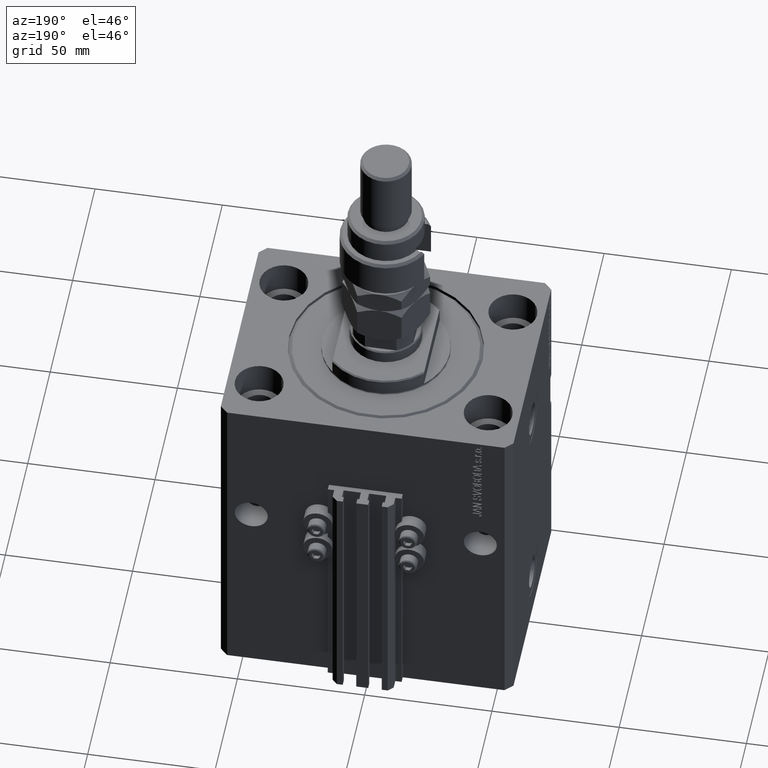
[diagram: clean part render]
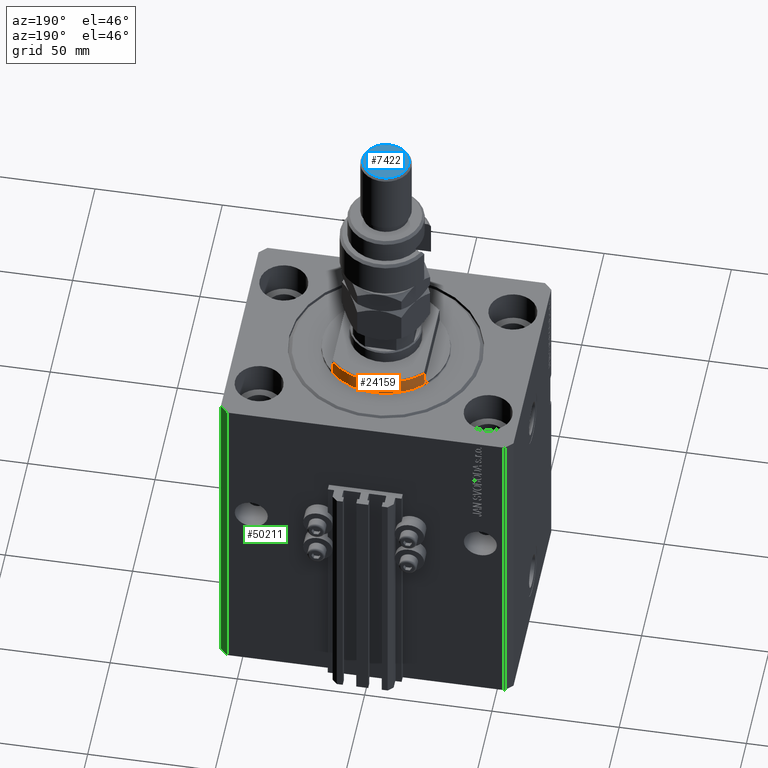
[diagram: same view with three faces highlighted in distinct colors, each labeled with its STEP entity id]
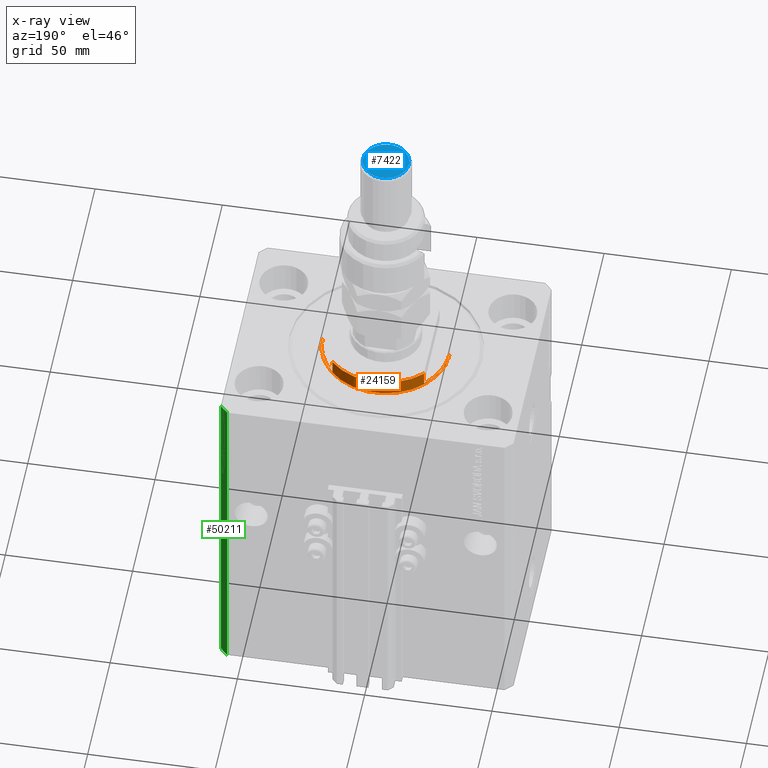
[diagram: x-ray of the same camera — body ghosted, the three highlighted faces saturated]
A machine part, auxiliary view with three faces highlighted in distinct colors.
The next image is the same camera in x-ray (body ghosted, the three faces saturated) — at least one of them is partly hidden behind the body in this view.
Their STEP definitions:

[orange] entity #24159 — the highlighted cylindrical surface (partial cylindrical patch) has radius 25 mm, axis along (0, 0, -1).
#126 = DIRECTION ( 'NONE',  ( 0.000000000000000000, 0.000000000000000000, -1.000000000000000000 ) ) ;
#181 = LINE ( 'NONE', #40263, #9618 ) ;
#582 = ORIENTED_EDGE ( 'NONE', *, *, #28354, .F. ) ;
#2397 = CIRCLE ( 'NONE', #41441, 25.00000000000000000 ) ;
#2683 = LINE ( 'NONE', #43269, #12703 ) ;
#3318 = EDGE_CURVE ( 'NONE', #16371, #26999, #21681, .T. ) ;
#5715 = CIRCLE ( 'NONE', #12342, 25.00000000000000000 ) ;
#6392 = DIRECTION ( 'NONE',  ( -1.000000000000000000, 0.000000000000000000, 0.000000000000000000 ) ) ;
#6649 = DIRECTION ( 'NONE',  ( 0.000000000000000000, 0.000000000000000000, 1.000000000000000000 ) ) ;
#6724 = CARTESIAN_POINT ( 'NONE',  ( -18.00000000000000000, 17.34935157289747920, -7.000000000000000000 ) ) ;
#6987 = CARTESIAN_POINT ( 'NONE',  ( 18.00000000000000000, 17.34935157289747920, -7.000000000000000000 ) ) ;
#7077 = CYLINDRICAL_SURFACE ( 'NONE', #30493, 25.00000000000000000 ) ;
#8002 = DIRECTION ( 'NONE',  ( -0.000000000000000000, -0.000000000000000000, 1.000000000000000000 ) ) ;
#8865 = CARTESIAN_POINT ( 'NONE',  ( 25.00000000000000000, 0.000000000000000000, -0.4999999999999995559 ) ) ;
#9197 = ORIENTED_EDGE ( 'NONE', *, *, #50213, .F. ) ;
#9618 = VECTOR ( 'NONE', #8002, 1000.000000000000000 ) ;
#9671 = CARTESIAN_POINT ( 'NONE',  ( 18.00000000000000000, 17.34935157289747920, -1.000000000000000000 ) ) ;
#10635 = DIRECTION ( 'NONE',  ( -0.000000000000000000, -0.000000000000000000, 1.000000000000000000 ) ) ;
#11901 = EDGE_CURVE ( 'NONE', #12811, #22848, #37606, .T. ) ;
#12189 = CARTESIAN_POINT ( 'NONE',  ( -18.00000000000000000, 17.34935157289747920, -1.000000000000000000 ) ) ;
#12342 = AXIS2_PLACEMENT_3D ( 'NONE', #18906, #30882, #35554 ) ;
#12703 = VECTOR ( 'NONE', #31311, 1000.000000000000000 ) ;
#12811 = VERTEX_POINT ( 'NONE', #47078 ) ;
#14368 = FACE_OUTER_BOUND ( 'NONE', #26159, .T. ) ;
#14525 = LINE ( 'NONE', #6987, #37075 ) ;
#15134 = CARTESIAN_POINT ( 'NONE',  ( 25.00000000000000000, 0.000000000000000000, -1.000000000000000000 ) ) ;
#15168 = AXIS2_PLACEMENT_3D ( 'NONE', #19420, #31382, #47259 ) ;
#16371 = VERTEX_POINT ( 'NONE', #33175 ) ;
#17507 = AXIS2_PLACEMENT_3D ( 'NONE', #20468, #6649, #6392 ) ;
#17891 = VECTOR ( 'NONE', #10635, 1000.000000000000000 ) ;
#18906 = CARTESIAN_POINT ( 'NONE',  ( 0.000000000000000000, 0.000000000000000000, -1.000000000000000000 ) ) ;
#19311 = DIRECTION ( 'NONE',  ( 1.000000000000000000, 0.000000000000000000, 0.000000000000000000 ) ) ;
#19420 = CARTESIAN_POINT ( 'NONE',  ( 0.000000000000000000, 0.000000000000000000, -0.4999999999999995559 ) ) ;
#20254 = ORIENTED_EDGE ( 'NONE', *, *, #3318, .T. ) ;
#20468 = CARTESIAN_POINT ( 'NONE',  ( 0.000000000000000000, 0.000000000000000000, -6.499999999999971578 ) ) ;
#20692 = DIRECTION ( 'NONE',  ( -1.000000000000000000, 0.000000000000000000, 0.000000000000000000 ) ) ;
#21681 = CIRCLE ( 'NONE', #17507, 25.00000000000000000 ) ;
#22351 = LINE ( 'NONE', #6724, #17891 ) ;
#22848 = VERTEX_POINT ( 'NONE', #8865 ) ;
#23134 = VERTEX_POINT ( 'NONE', #12189 ) ;
#24159 = ADVANCED_FACE ( 'NONE', ( #14368 ), #7077, .T. ) ;
#24161 = CARTESIAN_POINT ( 'NONE',  ( -18.00000000000000000, 17.34935157289748986, -6.499999999999978684 ) ) ;
#24918 = VERTEX_POINT ( 'NONE', #15134 ) ;
#26159 = EDGE_LOOP ( 'NONE', ( #582, #36159, #28519, #49730, #35524, #9197, #20254, #38109 ) ) ;
#26999 = VERTEX_POINT ( 'NONE', #24161 ) ;
#27630 = VERTEX_POINT ( 'NONE', #49366 ) ;
#28354 = EDGE_CURVE ( 'NONE', #27630, #23134, #5715, .T. ) ;
#28471 = EDGE_CURVE ( 'NONE', #44924, #24918, #2397, .T. ) ;
#28519 = ORIENTED_EDGE ( 'NONE', *, *, #11901, .T. ) ;
#30407 = DIRECTION ( 'NONE',  ( -0.000000000000000000, -0.000000000000000000, 1.000000000000000000 ) ) ;
#30493 = AXIS2_PLACEMENT_3D ( 'NONE', #50545, #46125, #19311 ) ;
#30882 = DIRECTION ( 'NONE',  ( 0.000000000000000000, 0.000000000000000000, -1.000000000000000000 ) ) ;
#31311 = DIRECTION ( 'NONE',  ( -0.000000000000000000, -0.000000000000000000, 1.000000000000000000 ) ) ;
#31382 = DIRECTION ( 'NONE',  ( -0.000000000000000000, -0.000000000000000000, -1.000000000000000000 ) ) ;
#33175 = CARTESIAN_POINT ( 'NONE',  ( 18.00000000000000000, 17.34935157289748986, -6.499999999999978684 ) ) ;
#35524 = ORIENTED_EDGE ( 'NONE', *, *, #28471, .F. ) ;
#35554 = DIRECTION ( 'NONE',  ( -1.000000000000000000, 0.000000000000000000, 0.000000000000000000 ) ) ;
#35798 = CARTESIAN_POINT ( 'NONE',  ( 0.000000000000000000, 0.000000000000000000, -1.000000000000000000 ) ) ;
#36159 = ORIENTED_EDGE ( 'NONE', *, *, #46429, .T. ) ;
#37075 = VECTOR ( 'NONE', #30407, 1000.000000000000000 ) ;
#37606 = CIRCLE ( 'NONE', #15168, 25.00000000000000000 ) ;
#38109 = ORIENTED_EDGE ( 'NONE', *, *, #49671, .T. ) ;
#40263 = CARTESIAN_POINT ( 'NONE',  ( -25.00000000000000000, 3.061616997868383043E-15, -7.000000000000000000 ) ) ;
#41441 = AXIS2_PLACEMENT_3D ( 'NONE', #35798, #126, #20692 ) ;
#43269 = CARTESIAN_POINT ( 'NONE',  ( 25.00000000000000000, 0.000000000000000000, -7.000000000000000000 ) ) ;
#44059 = EDGE_CURVE ( 'NONE', #24918, #22848, #2683, .T. ) ;
#44924 = VERTEX_POINT ( 'NONE', #9671 ) ;
#46125 = DIRECTION ( 'NONE',  ( -0.000000000000000000, -0.000000000000000000, 1.000000000000000000 ) ) ;
#46429 = EDGE_CURVE ( 'NONE', #27630, #12811, #181, .T. ) ;
#47078 = CARTESIAN_POINT ( 'NONE',  ( -25.00000000000000000, 3.061616997868383043E-15, -0.4999999999999995559 ) ) ;
#47259 = DIRECTION ( 'NONE',  ( 1.000000000000000000, 0.000000000000000000, 0.000000000000000000 ) ) ;
#49366 = CARTESIAN_POINT ( 'NONE',  ( -25.00000000000000000, 3.061616997868383043E-15, -1.000000000000000000 ) ) ;
#49671 = EDGE_CURVE ( 'NONE', #26999, #23134, #22351, .T. ) ;
#49730 = ORIENTED_EDGE ( 'NONE', *, *, #44059, .F. ) ;
#50213 = EDGE_CURVE ( 'NONE', #16371, #44924, #14525, .T. ) ;
#50545 = CARTESIAN_POINT ( 'NONE',  ( 0.000000000000000000, 0.000000000000000000, -7.000000000000000000 ) ) ;

[blue] entity #7422 — the highlighted planar face has unit normal (0, 0, 1).
#206 = AXIS2_PLACEMENT_3D ( 'NONE', #7688, #23574, #39700 ) ;
#2544 = CARTESIAN_POINT ( 'NONE',  ( 0.000000000000000000, 0.000000000000000000, 56.00000000000000711 ) ) ;
#7422 = ADVANCED_FACE ( 'NONE', ( #45685 ), #25128, .T. ) ;
#7688 = CARTESIAN_POINT ( 'NONE',  ( 0.000000000000000000, 0.000000000000000000, 56.00000000000000711 ) ) ;
#9259 = CARTESIAN_POINT ( 'NONE',  ( 0.000000000000000000, 0.000000000000000000, 56.00000000000000711 ) ) ;
#11906 = EDGE_CURVE ( 'NONE', #37684, #32098, #45925, .T. ) ;
#13676 = DIRECTION ( 'NONE',  ( 1.000000000000000000, 0.000000000000000000, -0.000000000000000000 ) ) ;
#14005 = DIRECTION ( 'NONE',  ( 1.000000000000000000, 0.000000000000000000, 0.000000000000000000 ) ) ;
#23574 = DIRECTION ( 'NONE',  ( 0.000000000000000000, 0.000000000000000000, 1.000000000000000000 ) ) ;
#25128 = PLANE ( 'NONE',  #32589 ) ;
#25388 = DIRECTION ( 'NONE',  ( 0.000000000000000000, 0.000000000000000000, 1.000000000000000000 ) ) ;
#28463 = AXIS2_PLACEMENT_3D ( 'NONE', #2544, #45502, #14005 ) ;
#32098 = VERTEX_POINT ( 'NONE', #42447 ) ;
#32589 = AXIS2_PLACEMENT_3D ( 'NONE', #9259, #25388, #13676 ) ;
#35263 = EDGE_LOOP ( 'NONE', ( #49710, #38214 ) ) ;
#37684 = VERTEX_POINT ( 'NONE', #51204 ) ;
#38214 = ORIENTED_EDGE ( 'NONE', *, *, #11906, .T. ) ;
#39700 = DIRECTION ( 'NONE',  ( 1.000000000000000000, 0.000000000000000000, 0.000000000000000000 ) ) ;
#42447 = CARTESIAN_POINT ( 'NONE',  ( -8.999999999999987566, 0.000000000000000000, 56.00000000000000711 ) ) ;
#42579 = CIRCLE ( 'NONE', #28463, 8.999999999999987566 ) ;
#43219 = EDGE_CURVE ( 'NONE', #32098, #37684, #42579, .T. ) ;
#45502 = DIRECTION ( 'NONE',  ( 0.000000000000000000, 0.000000000000000000, 1.000000000000000000 ) ) ;
#45685 = FACE_OUTER_BOUND ( 'NONE', #35263, .T. ) ;
#45925 = CIRCLE ( 'NONE', #206, 8.999999999999987566 ) ;
#49710 = ORIENTED_EDGE ( 'NONE', *, *, #43219, .T. ) ;
#51204 = CARTESIAN_POINT ( 'NONE',  ( 8.999999999999987566, 1.163414459189984894E-15, 56.00000000000000711 ) ) ;

[green] entity #50211 — the highlighted planar face has unit normal (0.7071, 0.7071, 0).
#4626 = EDGE_CURVE ( 'NONE', #48419, #27142, #5265, .T. ) ;
#5265 = LINE ( 'NONE', #8645, #43293 ) ;
#8645 = CARTESIAN_POINT ( 'NONE',  ( 57.50000000000055422, 41.99999999999997868, -135.0000000000000000 ) ) ;
#11884 = CARTESIAN_POINT ( 'NONE',  ( 54.50000000000058975, 45.00000000000002842, -135.0000000000000000 ) ) ;
#12480 = ORIENTED_EDGE ( 'NONE', *, *, #4626, .T. ) ;
#13065 = DIRECTION ( 'NONE',  ( -0.7071067811865376918, 0.7071067811865574537, 0.000000000000000000 ) ) ;
#13786 = AXIS2_PLACEMENT_3D ( 'NONE', #18951, #46028, #34317 ) ;
#15423 = CARTESIAN_POINT ( 'NONE',  ( 57.50000000000055422, 41.99999999999997868, -135.0000000000000000 ) ) ;
#18424 = FACE_OUTER_BOUND ( 'NONE', #42407, .T. ) ;
#18951 = CARTESIAN_POINT ( 'NONE',  ( 57.50000000000055422, 41.99999999999997868, -135.0000000000000000 ) ) ;
#19210 = VERTEX_POINT ( 'NONE', #35659 ) ;
#27142 = VERTEX_POINT ( 'NONE', #46263 ) ;
#28217 = ORIENTED_EDGE ( 'NONE', *, *, #42357, .T. ) ;
#28377 = CARTESIAN_POINT ( 'NONE',  ( 57.50000000000055422, 41.99999999999997868, 0.000000000000000000 ) ) ;
#30667 = PLANE ( 'NONE',  #13786 ) ;
#34100 = VERTEX_POINT ( 'NONE', #28377 ) ;
#34317 = DIRECTION ( 'NONE',  ( -0.7071067811865378028, 0.7071067811865573427, 0.000000000000000000 ) ) ;
#35125 = VECTOR ( 'NONE', #38981, 999.9999999999998863 ) ;
#35659 = CARTESIAN_POINT ( 'NONE',  ( 54.50000000000058975, 45.00000000000002842, 0.000000000000000000 ) ) ;
#36751 = VECTOR ( 'NONE', #38973, 1000.000000000000000 ) ;
#36847 = ORIENTED_EDGE ( 'NONE', *, *, #43309, .F. ) ;
#37892 = VECTOR ( 'NONE', #46877, 1000.000000000000000 ) ;
#38973 = DIRECTION ( 'NONE',  ( 0.000000000000000000, 0.000000000000000000, 1.000000000000000000 ) ) ;
#38981 = DIRECTION ( 'NONE',  ( -0.7071067811865376918, 0.7071067811865574537, 0.000000000000000000 ) ) ;
#39492 = LINE ( 'NONE', #42619, #35125 ) ;
#39576 = CARTESIAN_POINT ( 'NONE',  ( 57.50000000000055422, 41.99999999999997868, -135.0000000000000000 ) ) ;
#42357 = EDGE_CURVE ( 'NONE', #27142, #19210, #47552, .T. ) ;
#42407 = EDGE_LOOP ( 'NONE', ( #36847, #48347, #12480, #28217 ) ) ;
#42619 = CARTESIAN_POINT ( 'NONE',  ( 57.50000000000055422, 41.99999999999997868, 0.000000000000000000 ) ) ;
#43293 = VECTOR ( 'NONE', #13065, 999.9999999999998863 ) ;
#43309 = EDGE_CURVE ( 'NONE', #34100, #19210, #39492, .T. ) ;
#46028 = DIRECTION ( 'NONE',  ( 0.7071067811865573427, 0.7071067811865378028, -0.000000000000000000 ) ) ;
#46263 = CARTESIAN_POINT ( 'NONE',  ( 54.50000000000058975, 45.00000000000002842, -135.0000000000000000 ) ) ;
#46877 = DIRECTION ( 'NONE',  ( 0.000000000000000000, 0.000000000000000000, 1.000000000000000000 ) ) ;
#47552 = LINE ( 'NONE', #11884, #36751 ) ;
#48347 = ORIENTED_EDGE ( 'NONE', *, *, #50916, .F. ) ;
#48419 = VERTEX_POINT ( 'NONE', #15423 ) ;
#50211 = ADVANCED_FACE ( 'NONE', ( #18424 ), #30667, .T. ) ;
#50783 = LINE ( 'NONE', #39576, #37892 ) ;
#50916 = EDGE_CURVE ( 'NONE', #48419, #34100, #50783, .T. ) ;